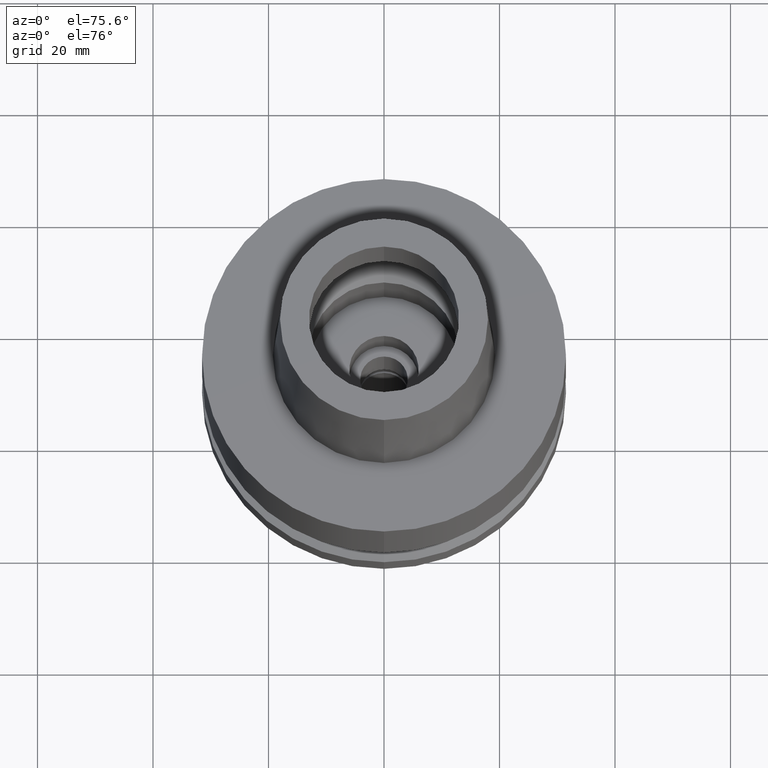
[diagram: clean part render]
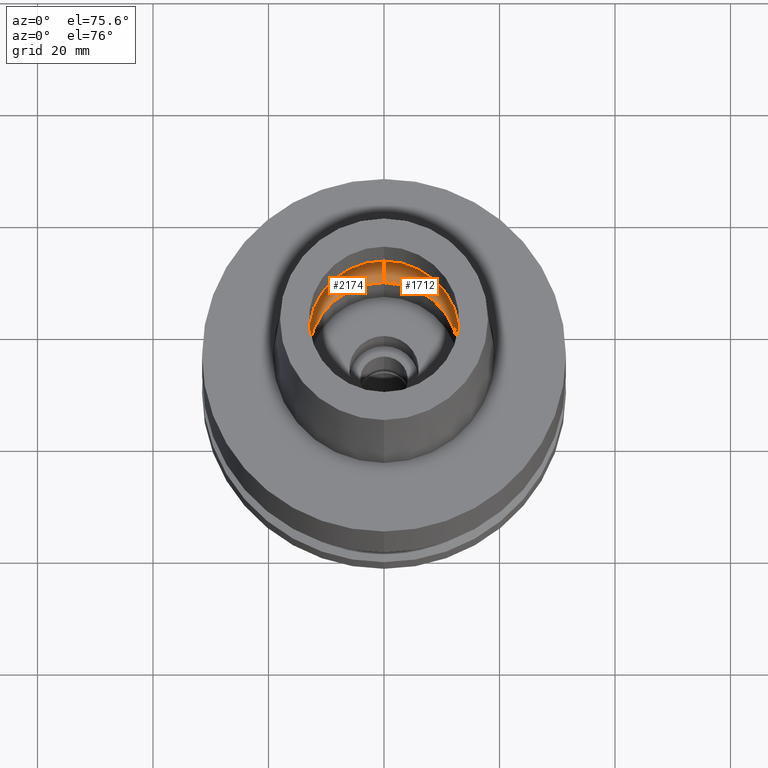
[diagram: same view with one multi-face feature highlighted, each face labeled with its STEP entity id]
A machine part, auxiliary view. The highlighted faces form ONE feature: a constant-radius fillet chain: 2 tangent blend faces with common blend radius 6 mm. The faces share edges in the B-rep.
Their STEP definitions:
[1] entity #2174 (Torus):
#2 = EDGE_CURVE ( 'NONE', #1047, #1292, #1768, .T. ) ;
#101 = DIRECTION ( 'NONE',  ( 0.0000000000000000000, 0.0000000000000000000, 1.000000000000000000 ) ) ;
#182 = ORIENTED_EDGE ( 'NONE', *, *, #724, .F. ) ;
#208 = EDGE_LOOP ( 'NONE', ( #1698, #182, #388, #2698 ) ) ;
#323 = AXIS2_PLACEMENT_3D ( 'NONE', #892, #1707, #1068 ) ;
#350 = DIRECTION ( 'NONE',  ( 0.0000000000000000000, 1.000000000000000000, 0.0000000000000000000 ) ) ;
#388 = ORIENTED_EDGE ( 'NONE', *, *, #2, .F. ) ;
#440 = DIRECTION ( 'NONE',  ( 0.0000000000000000000, 0.5000000000000169864, -0.8660254037844289376 ) ) ;
#457 = AXIS2_PLACEMENT_3D ( 'NONE', #1924, #1294, #440 ) ;
#712 = VERTEX_POINT ( 'NONE', #1504 ) ;
#724 = EDGE_CURVE ( 'NONE', #1292, #712, #2170, .T. ) ;
#789 = AXIS2_PLACEMENT_3D ( 'NONE', #1614, #2464, #1407 ) ;
#866 = VERTEX_POINT ( 'NONE', #1787 ) ;
#892 = CARTESIAN_POINT ( 'NONE',  ( 0.0000000000000000000, 0.0000000000000000000, 5.245999999999999552 ) ) ;
#957 = AXIS2_PLACEMENT_3D ( 'NONE', #2353, #1323, #1300 ) ;
#1047 = VERTEX_POINT ( 'NONE', #1857 ) ;
#1068 = DIRECTION ( 'NONE',  ( 0.0000000000000000000, -1.000000000000000000, 0.0000000000000000000 ) ) ;
#1188 = CARTESIAN_POINT ( 'NONE',  ( 0.0000000000000000000, -13.00000000000000000, 0.04984757729338999688 ) ) ;
#1215 = EDGE_CURVE ( 'NONE', #712, #866, #2479, .T. ) ;
#1290 = TOROIDAL_SURFACE ( 'NONE', #1683, 10.00000000000000000, 6.000000000000000000 ) ;
#1292 = VERTEX_POINT ( 'NONE', #1188 ) ;
#1294 = DIRECTION ( 'NONE',  ( 1.000000000000000000, 0.0000000000000000000, 0.0000000000000000000 ) ) ;
#1300 = DIRECTION ( 'NONE',  ( 0.0000000000000000000, -0.5000000000000169864, -0.8660254037844289376 ) ) ;
#1323 = DIRECTION ( 'NONE',  ( -1.000000000000000000, 0.0000000000000000000, 0.0000000000000000000 ) ) ;
#1380 = FACE_OUTER_BOUND ( 'NONE', #208, .T. ) ;
#1407 = DIRECTION ( 'NONE',  ( 0.0000000000000000000, 1.000000000000000000, 0.0000000000000000000 ) ) ;
#1504 = CARTESIAN_POINT ( 'NONE',  ( 0.0000000000000000000, -16.00000000000000000, 5.245999999999999552 ) ) ;
#1614 = CARTESIAN_POINT ( 'NONE',  ( 0.0000000000000000000, 0.0000000000000000000, 0.04984757729338999688 ) ) ;
#1683 = AXIS2_PLACEMENT_3D ( 'NONE', #2034, #101, #350 ) ;
#1698 = ORIENTED_EDGE ( 'NONE', *, *, #1215, .F. ) ;
#1707 = DIRECTION ( 'NONE',  ( 0.0000000000000000000, 0.0000000000000000000, -1.000000000000000000 ) ) ;
#1768 = CIRCLE ( 'NONE', #789, 13.00000000000000000 ) ;
#1787 = CARTESIAN_POINT ( 'NONE',  ( 0.0000000000000000000, 16.00000000000000000, 5.245999999999999552 ) ) ;
#1857 = CARTESIAN_POINT ( 'NONE',  ( 0.0000000000000000000, 13.00000000000000000, 0.04984757729341000171 ) ) ;
#1878 = EDGE_CURVE ( 'NONE', #1047, #866, #2028, .T. ) ;
#1924 = CARTESIAN_POINT ( 'NONE',  ( 0.0000000000000000000, 10.00000000000000000, 5.245999999999999552 ) ) ;
#2028 = CIRCLE ( 'NONE', #457, 6.000000000000000000 ) ;
#2034 = CARTESIAN_POINT ( 'NONE',  ( 0.0000000000000000000, 0.0000000000000000000, 5.245999999999999552 ) ) ;
#2170 = CIRCLE ( 'NONE', #957, 6.000000000000000000 ) ;
#2174 = ADVANCED_FACE ( 'NONE', ( #1380 ), #1290, .F. ) ;
#2353 = CARTESIAN_POINT ( 'NONE',  ( 0.0000000000000000000, -10.00000000000000000, 5.245999999999999552 ) ) ;
#2464 = DIRECTION ( 'NONE',  ( 0.0000000000000000000, 0.0000000000000000000, 1.000000000000000000 ) ) ;
#2479 = CIRCLE ( 'NONE', #323, 16.00000000000000000 ) ;
#2698 = ORIENTED_EDGE ( 'NONE', *, *, #1878, .T. ) ;
[2] entity #1712 (Torus):
#140 = TOROIDAL_SURFACE ( 'NONE', #2300, 10.00000000000000000, 6.000000000000000000 ) ;
#290 = EDGE_CURVE ( 'NONE', #866, #712, #505, .T. ) ;
#440 = DIRECTION ( 'NONE',  ( 0.0000000000000000000, 0.5000000000000169864, -0.8660254037844289376 ) ) ;
#457 = AXIS2_PLACEMENT_3D ( 'NONE', #1924, #1294, #440 ) ;
#505 = CIRCLE ( 'NONE', #695, 16.00000000000000000 ) ;
#695 = AXIS2_PLACEMENT_3D ( 'NONE', #1880, #1239, #1140 ) ;
#698 = CARTESIAN_POINT ( 'NONE',  ( 0.0000000000000000000, 0.0000000000000000000, 0.04984757729338999688 ) ) ;
#712 = VERTEX_POINT ( 'NONE', #1504 ) ;
#724 = EDGE_CURVE ( 'NONE', #1292, #712, #2170, .T. ) ;
#866 = VERTEX_POINT ( 'NONE', #1787 ) ;
#957 = AXIS2_PLACEMENT_3D ( 'NONE', #2353, #1323, #1300 ) ;
#1047 = VERTEX_POINT ( 'NONE', #1857 ) ;
#1140 = DIRECTION ( 'NONE',  ( 0.0000000000000000000, 1.000000000000000000, 0.0000000000000000000 ) ) ;
#1188 = CARTESIAN_POINT ( 'NONE',  ( 0.0000000000000000000, -13.00000000000000000, 0.04984757729338999688 ) ) ;
#1206 = DIRECTION ( 'NONE',  ( 0.0000000000000000000, -1.000000000000000000, 0.0000000000000000000 ) ) ;
#1239 = DIRECTION ( 'NONE',  ( 0.0000000000000000000, 0.0000000000000000000, -1.000000000000000000 ) ) ;
#1257 = FACE_OUTER_BOUND ( 'NONE', #1809, .T. ) ;
#1287 = CIRCLE ( 'NONE', #2786, 13.00000000000000000 ) ;
#1292 = VERTEX_POINT ( 'NONE', #1188 ) ;
#1294 = DIRECTION ( 'NONE',  ( 1.000000000000000000, 0.0000000000000000000, 0.0000000000000000000 ) ) ;
#1300 = DIRECTION ( 'NONE',  ( 0.0000000000000000000, -0.5000000000000169864, -0.8660254037844289376 ) ) ;
#1323 = DIRECTION ( 'NONE',  ( -1.000000000000000000, 0.0000000000000000000, 0.0000000000000000000 ) ) ;
#1414 = ORIENTED_EDGE ( 'NONE', *, *, #290, .F. ) ;
#1504 = CARTESIAN_POINT ( 'NONE',  ( 0.0000000000000000000, -16.00000000000000000, 5.245999999999999552 ) ) ;
#1510 = ORIENTED_EDGE ( 'NONE', *, *, #1611, .F. ) ;
#1611 = EDGE_CURVE ( 'NONE', #1292, #1047, #1287, .T. ) ;
#1675 = DIRECTION ( 'NONE',  ( 0.0000000000000000000, 1.000000000000000000, 0.0000000000000000000 ) ) ;
#1712 = ADVANCED_FACE ( 'NONE', ( #1257 ), #140, .F. ) ;
#1787 = CARTESIAN_POINT ( 'NONE',  ( 0.0000000000000000000, 16.00000000000000000, 5.245999999999999552 ) ) ;
#1809 = EDGE_LOOP ( 'NONE', ( #1510, #2652, #1414, #2638 ) ) ;
#1857 = CARTESIAN_POINT ( 'NONE',  ( 0.0000000000000000000, 13.00000000000000000, 0.04984757729341000171 ) ) ;
#1878 = EDGE_CURVE ( 'NONE', #1047, #866, #2028, .T. ) ;
#1880 = CARTESIAN_POINT ( 'NONE',  ( 0.0000000000000000000, 0.0000000000000000000, 5.245999999999999552 ) ) ;
#1924 = CARTESIAN_POINT ( 'NONE',  ( 0.0000000000000000000, 10.00000000000000000, 5.245999999999999552 ) ) ;
#2028 = CIRCLE ( 'NONE', #457, 6.000000000000000000 ) ;
#2170 = CIRCLE ( 'NONE', #957, 6.000000000000000000 ) ;
#2300 = AXIS2_PLACEMENT_3D ( 'NONE', #2544, #2528, #1675 ) ;
#2353 = CARTESIAN_POINT ( 'NONE',  ( 0.0000000000000000000, -10.00000000000000000, 5.245999999999999552 ) ) ;
#2458 = DIRECTION ( 'NONE',  ( 0.0000000000000000000, 0.0000000000000000000, 1.000000000000000000 ) ) ;
#2528 = DIRECTION ( 'NONE',  ( 0.0000000000000000000, 0.0000000000000000000, 1.000000000000000000 ) ) ;
#2544 = CARTESIAN_POINT ( 'NONE',  ( 0.0000000000000000000, 0.0000000000000000000, 5.245999999999999552 ) ) ;
#2638 = ORIENTED_EDGE ( 'NONE', *, *, #1878, .F. ) ;
#2652 = ORIENTED_EDGE ( 'NONE', *, *, #724, .T. ) ;
#2786 = AXIS2_PLACEMENT_3D ( 'NONE', #698, #2458, #1206 ) ;